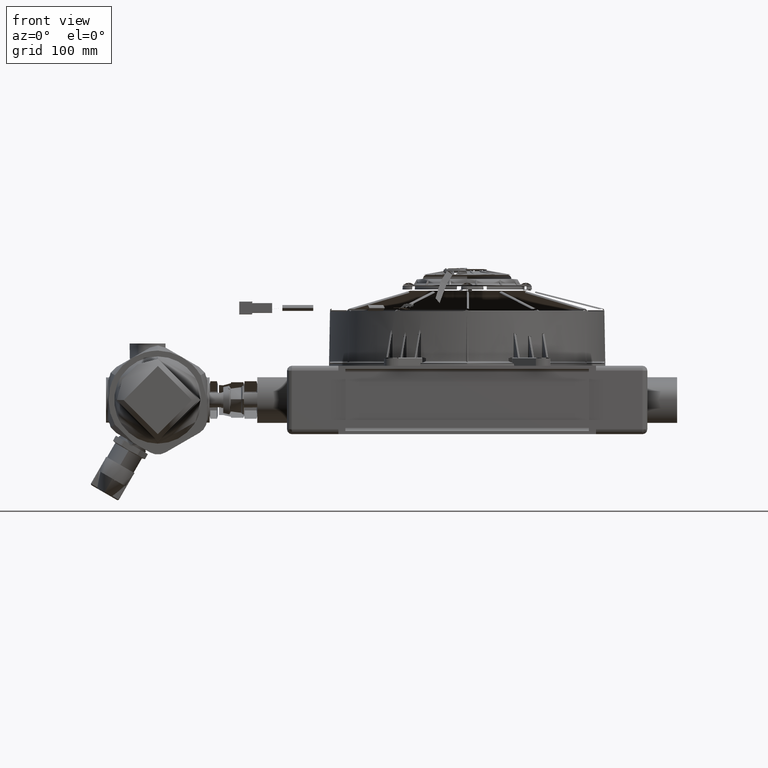
[diagram: clean part render]
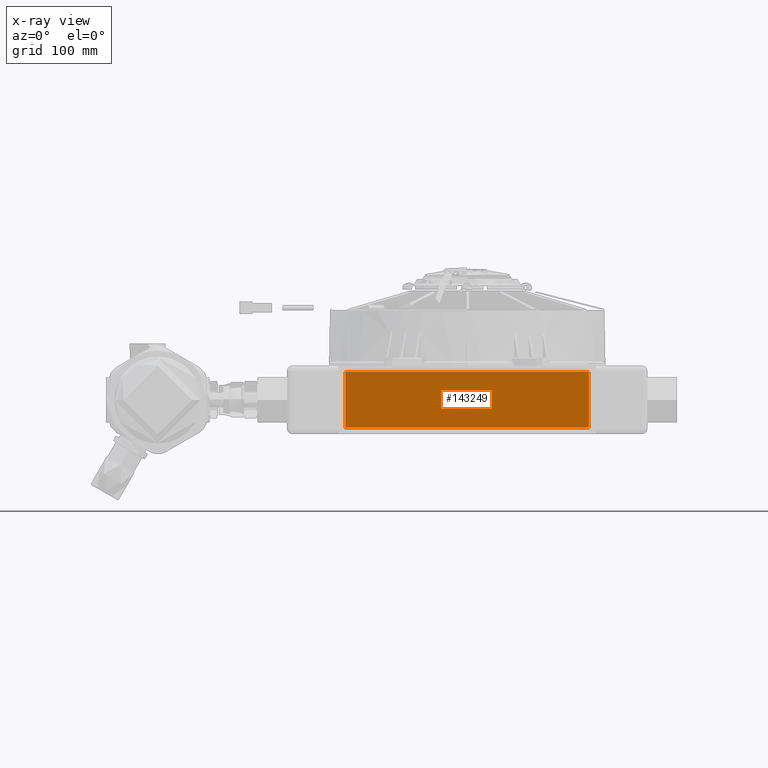
[diagram: x-ray — body ghosted, one internal face saturated and labeled with its STEP entity id]
A machine part, front view, then the same camera in x-ray: the body is ghosted and one INTERNAL B-rep face — a face not visible from any outside direction — is saturated and labeled: STEP entity #143249.
In plain terms, the highlighted planar face has unit normal (0, -1, -0).
Its self-contained STEP definition (entity closure, byte-faithful):
#10792 = EDGE_LOOP ( 'NONE', ( #15662, #95421, #68526, #130792 ) ) ;
#11228 = CARTESIAN_POINT ( 'NONE',  ( -4.669999999999999929, -4.803149606299212948, -1.072992125984252532 ) ) ;
#12682 = VECTOR ( 'NONE', #78884, 39.37007874015748143 ) ;
#15662 = ORIENTED_EDGE ( 'NONE', *, *, #146541, .F. ) ;
#19155 = DIRECTION ( 'NONE',  ( -1.110223024625156540E-16, -1.295984368164992340E-32, 1.000000000000000000 ) ) ;
#22343 = VERTEX_POINT ( 'NONE', #47152 ) ;
#38702 = VERTEX_POINT ( 'NONE', #41351 ) ;
#39066 = DIRECTION ( 'NONE',  ( 1.000000000000000000, 1.642146637880645005E-47, 1.110223024625156540E-16 ) ) ;
#41351 = CARTESIAN_POINT ( 'NONE',  ( -4.669999999999999929, -4.803149606299212948, 1.072992125984251421 ) ) ;
#41853 = EDGE_CURVE ( 'NONE', #22343, #137117, #130464, .T. ) ;
#43375 = CARTESIAN_POINT ( 'NONE',  ( -4.669999999999999929, -4.803149606299212948, 1.072992125984251421 ) ) ;
#45611 = VECTOR ( 'NONE', #39066, 39.37007874015748143 ) ;
#47152 = CARTESIAN_POINT ( 'NONE',  ( 4.669999999999999929, -4.803149606299212948, -1.072992125984251421 ) ) ;
#49081 = LINE ( 'NONE', #87487, #45611 ) ;
#54651 = DIRECTION ( 'NONE',  ( -1.110223024625156540E-16, -1.295984368164992340E-32, 1.000000000000000000 ) ) ;
#57095 = CARTESIAN_POINT ( 'NONE',  ( 4.669999999999999929, -4.803149606299212948, 1.072992125984252532 ) ) ;
#57492 = EDGE_CURVE ( 'NONE', #38702, #93131, #98144, .T. ) ;
#57989 = DIRECTION ( 'NONE',  ( -1.000000000000000000, -1.642146637880645005E-47, -1.110223024625156540E-16 ) ) ;
#68526 = ORIENTED_EDGE ( 'NONE', *, *, #162098, .F. ) ;
#77057 = AXIS2_PLACEMENT_3D ( 'NONE', #43375, #94219, #19155 ) ;
#78884 = DIRECTION ( 'NONE',  ( 1.110223024625156540E-16, 1.295984368164992340E-32, -1.000000000000000000 ) ) ;
#79718 = CARTESIAN_POINT ( 'NONE',  ( -4.669999999999999929, -4.803149606299212948, 1.072992125984251421 ) ) ;
#87487 = CARTESIAN_POINT ( 'NONE',  ( -4.669999999999999929, -4.803149606299212948, -1.072992125984252532 ) ) ;
#91721 = FACE_OUTER_BOUND ( 'NONE', #10792, .T. ) ;
#93131 = VERTEX_POINT ( 'NONE', #11228 ) ;
#93403 = VECTOR ( 'NONE', #57989, 39.37007874015748143 ) ;
#94219 = DIRECTION ( 'NONE',  ( 1.786029806389750906E-47, -1.000000000000000000, -1.295984368164992340E-32 ) ) ;
#95421 = ORIENTED_EDGE ( 'NONE', *, *, #57492, .F. ) ;
#98144 = LINE ( 'NONE', #79718, #12682 ) ;
#101216 = CARTESIAN_POINT ( 'NONE',  ( 4.669999999999999929, -4.803149606299212948, 1.072992125984252532 ) ) ;
#130464 = LINE ( 'NONE', #57095, #140391 ) ;
#130792 = ORIENTED_EDGE ( 'NONE', *, *, #41853, .F. ) ;
#137117 = VERTEX_POINT ( 'NONE', #101216 ) ;
#140391 = VECTOR ( 'NONE', #54651, 39.37007874015748143 ) ;
#143249 = ADVANCED_FACE ( 'NONE', ( #91721 ), #157582, .F. ) ;
#145536 = CARTESIAN_POINT ( 'NONE',  ( -4.669999999999999929, -4.803149606299212948, 1.072992125984251421 ) ) ;
#146541 = EDGE_CURVE ( 'NONE', #93131, #22343, #49081, .T. ) ;
#154089 = LINE ( 'NONE', #145536, #93403 ) ;
#157582 = PLANE ( 'NONE',  #77057 ) ;
#162098 = EDGE_CURVE ( 'NONE', #137117, #38702, #154089, .T. ) ;